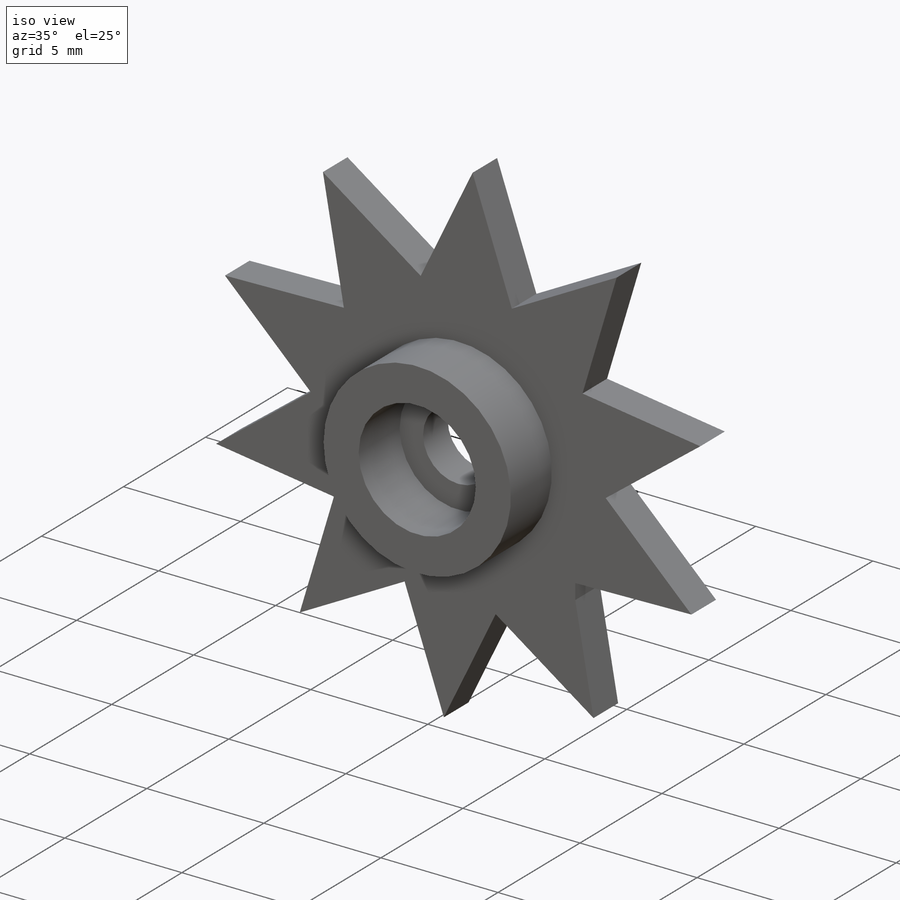
[diagram: iso view]
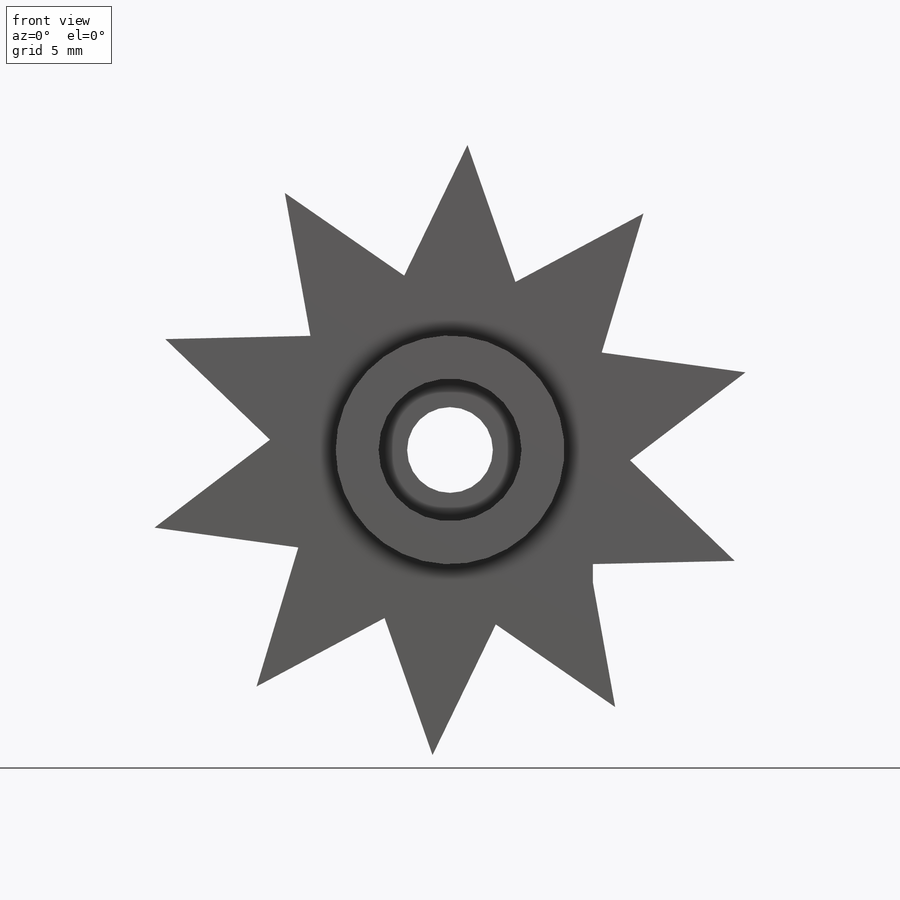
[diagram: front view]
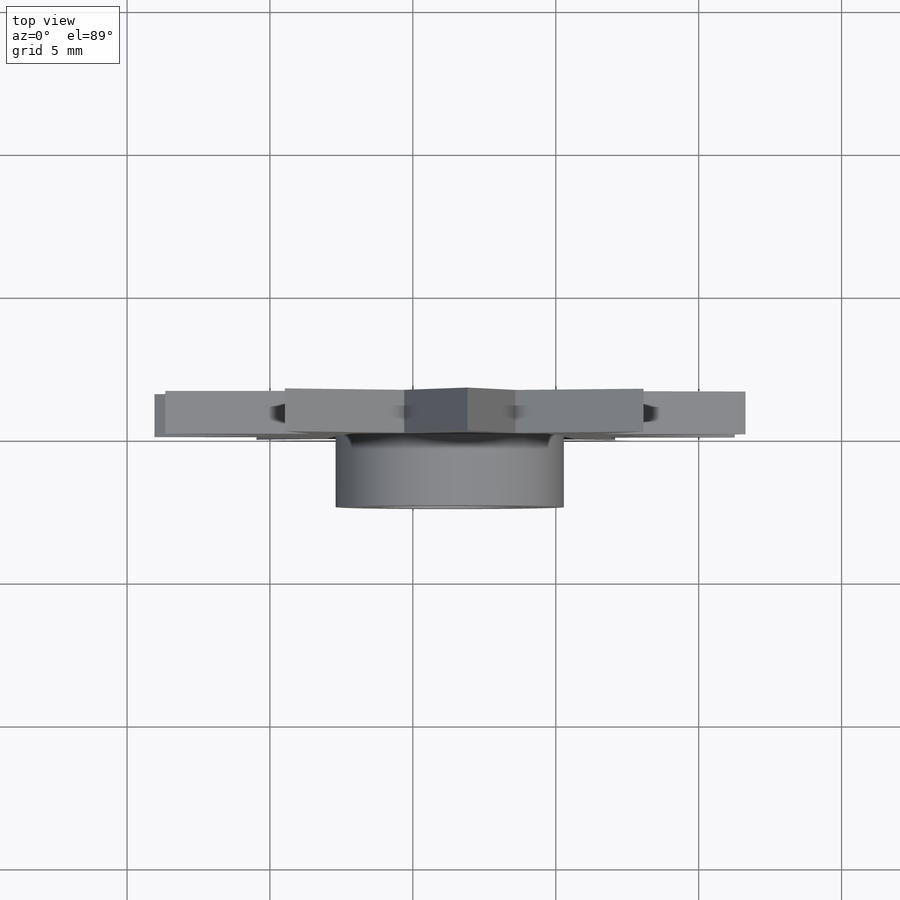
[diagram: top view]
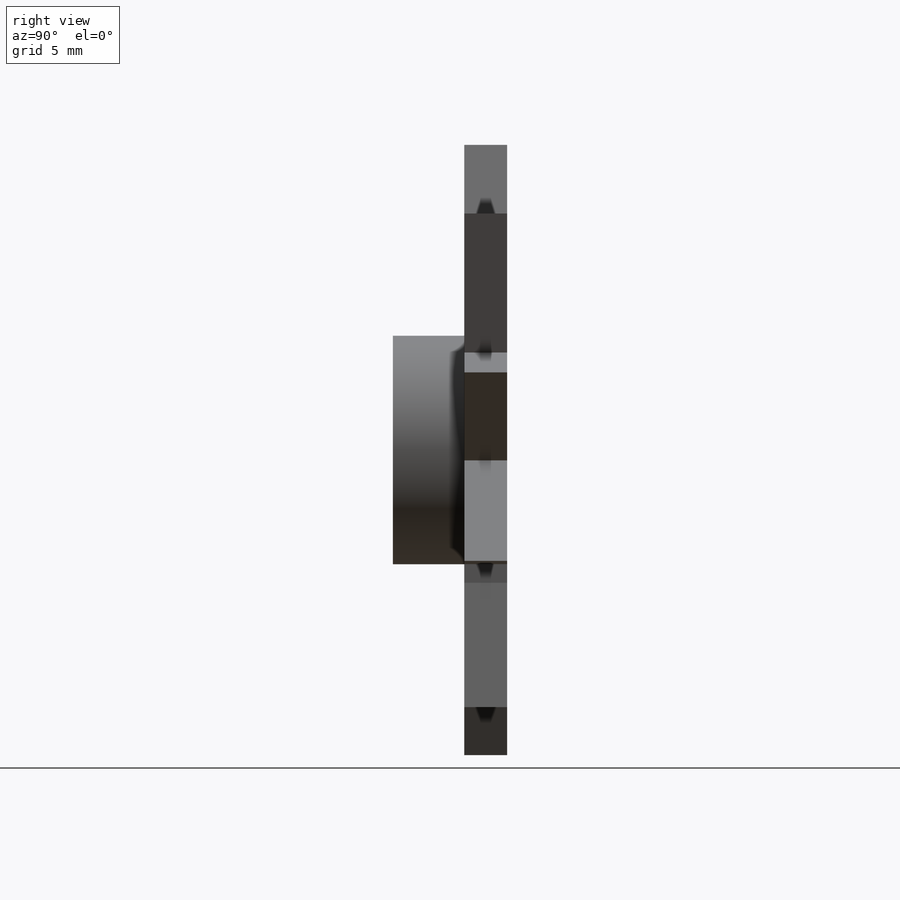
[diagram: right view]
SOLIDWORKS PART (.sldprt)
format: sldprt  version: not decoded by parser v0  size: 148,480 bytes
history: native  units: mm
features: plane x4, sketch x4, material x1, extrude x1, revolve x1, hole x1, chamfer x1 (+8 scaffold rows collapsed)
feature tree (21):
  scaffold x8  (default folders/planes/origin — collapsed)
  material  "Matériau <non spécifié>"
  plane  "Plan de face"
  plane  "Plan de dessus"
  plane  "Plan de droite"
  sketch  "Esquisse1"
  extrude  "Boss.-Extru.1"  Depth=1.5mm
  plane  "Plan1"
  sketch  "Esquisse2"
  revolve  "Révolution1"  Angle=360deg
  hole  "Chambrage pour vis à tête hexagonale M2.51"  Diameter=3mm Depth=4mm
  sketch  "Esquisse4"
  sketch  "Esquisse3"  dims[hole-wizard template sketch: 41 standard entries collapsed; hole parameters kept: c12.Diamètre du perçage jusqu'au prochain=3.0mm c12.Profondeur du perçage jusqu'au prochain=4.0mm c12.Diamètre du chambrage=5.0mm c12.Profondeur du chambrage=2.5mm]
  chamfer  "Chanfrein1"  Distance=0.661505mm Angle=10.151231deg
decode coverage: 5 of 8 modeling features carry decoded parameters
note: ~ marks probable driven/reference dimensions
note: suppression state not decoded; provenance and decode notes live in map.json
